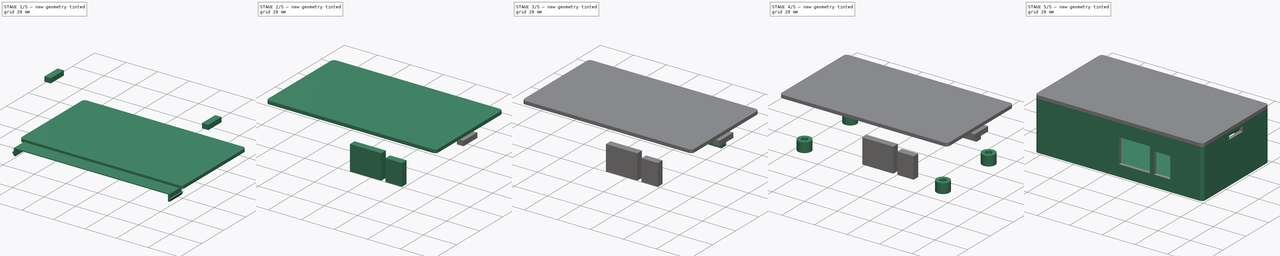
[diagram: build sequence overview — one tinted view per stage of 5, left to right]
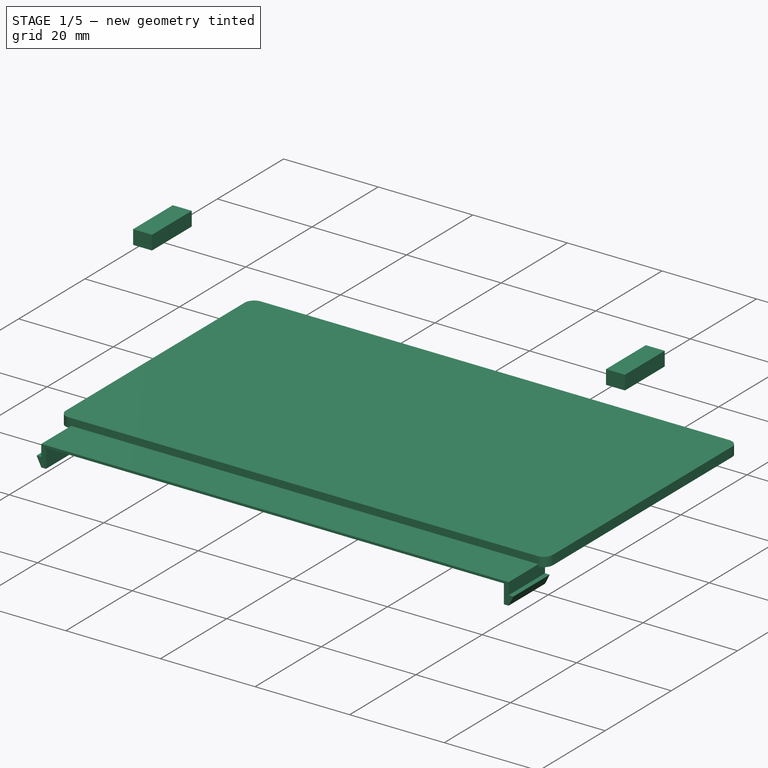
[diagram: stage 1 of 5 — iso view after this stage's code; geometry added in this stage tinted green]
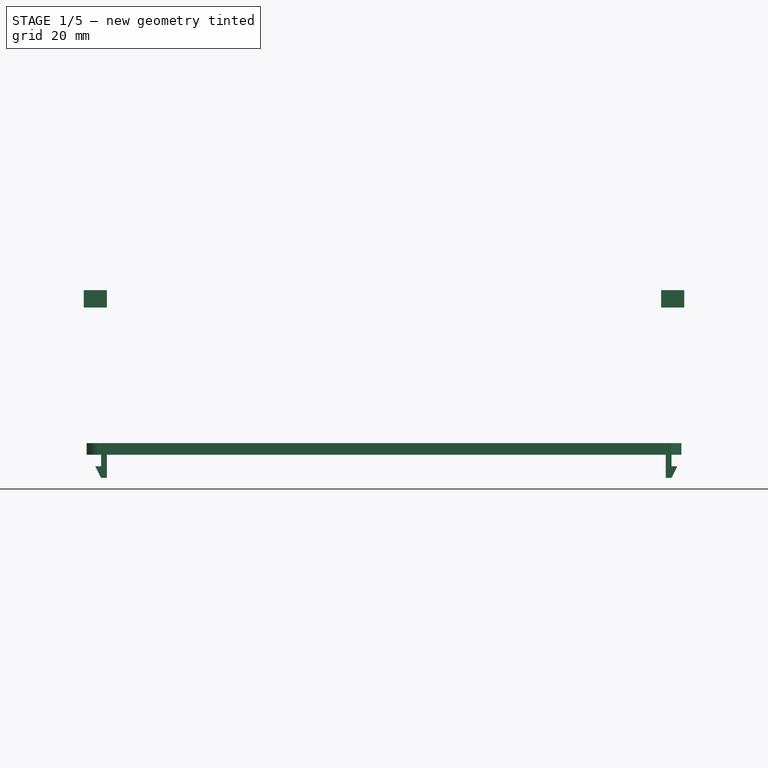
[diagram: stage 1 of 5 — front view after this stage's code; geometry added in this stage tinted green]
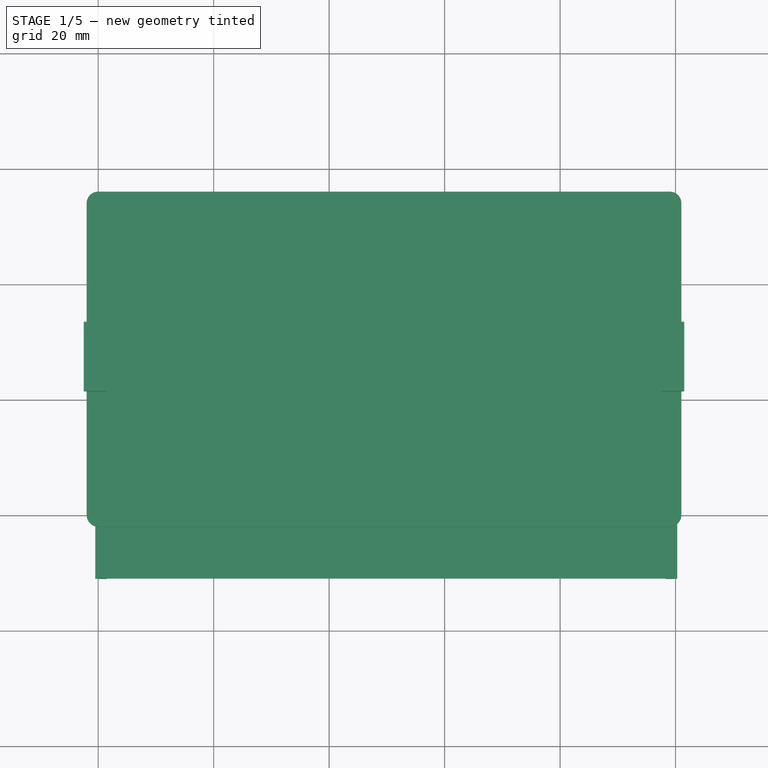
[diagram: stage 1 of 5 — top view after this stage's code; geometry added in this stage tinted green]
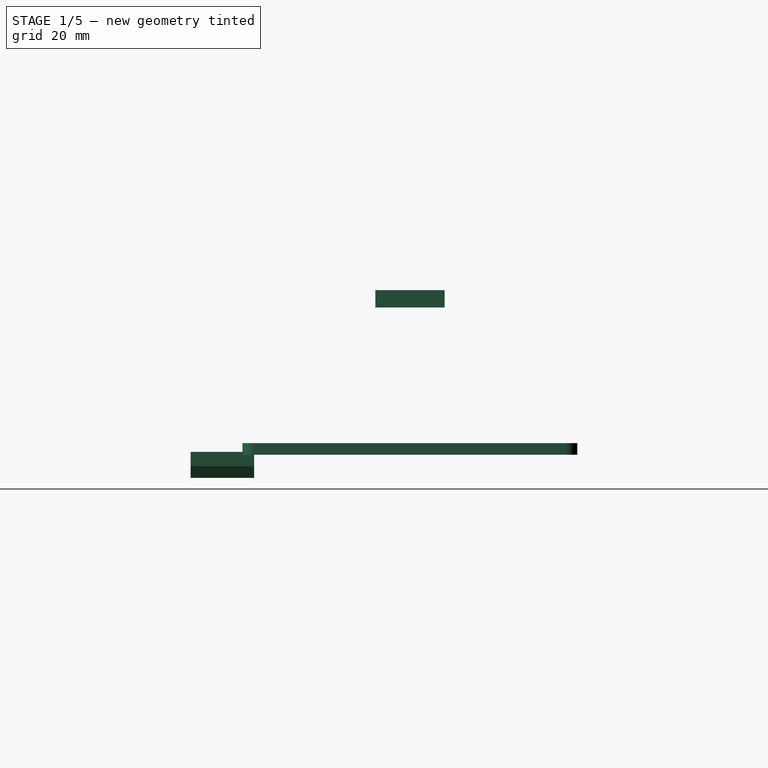
[diagram: stage 1 of 5 — right view after this stage's code; geometry added in this stage tinted green]
FCSTD DOCUMENT  (FreeCAD 0.20R29603 (Git))
Label: Case
License: All rights reserved
LicenseURL: http://en.wikipedia.org/wiki/All_rights_reserved
objects: Part::Box×9, Part::FeaturePython×4, Sketcher::SketchObject×3, PartDesign::Pad×3, PartDesign::Body×3, Part::MultiFuse×3, Part::Cut×1, Part::Feature×1
note: 30 computed .brp shape members not serialized (recipe doc carries the construction recipe); baked Part::Feature solids carry a one-line shape summary decoded from their .brp

FEATURE [Sketcher::SketchObject] Sketch001  label="LidSketch"
  FullyConstrained = true
  sketch-geometry (8):
    g0: ArcOfCircle CenterX=-9.23e-14 CenterY=54 CenterZ=0 NormalX=0 NormalY=0 NormalZ=1 AngleXU=0 Radius=2 StartAngle=1.5708 EndAngle=3.14159
    g1: LineSegment StartX=-9.22e-14 StartY=56 StartZ=0 EndX=99 EndY=56 EndZ=0
    g2: ArcOfCircle CenterX=99 CenterY=54 CenterZ=0 NormalX=0 NormalY=0 NormalZ=1 AngleXU=0 Radius=2 StartAngle=0 EndAngle=1.5708
    g3: LineSegment StartX=101 StartY=54 StartZ=0 EndX=101 EndY=0 EndZ=0
    g4: ArcOfCircle CenterX=99 CenterY=-2e-16 CenterZ=0 NormalX=0 NormalY=0 NormalZ=1 AngleXU=0 Radius=2 StartAngle=4.71239 EndAngle=6.28319
    g5: LineSegment StartX=99 StartY=-2 StartZ=0 EndX=0 EndY=-2 EndZ=0
    g6: ArcOfCircle CenterX=0 CenterY=0 CenterZ=0 NormalX=0 NormalY=0 NormalZ=1 AngleXU=0 Radius=2 StartAngle=3.14159 EndAngle=4.71239
    g7: LineSegment StartX=-2 StartY=1.672e-13 StartZ=0 EndX=-2 EndY=54 EndZ=0
  constraints (19):
    c: Radius(g0) = 2
    c: Horizontal(g1)
    c: Vertical(g3)
    c: Horizontal(g5)
    c: Vertical(g7)
    c: Tangent(g1,g0) = 1.5708
    c: Tangent(g7,g0) = 1.5708
    c: Tangent(g6,g5) = 1.5708
    c: Tangent(g7,g6) = 1.5708
    c: Tangent(g5,g4) = 1.5708
    c: Tangent(g4,g3) = 1.5708
    c: Tangent(g3,g2) = 1.5708
    c: Tangent(g2,g1) = 1.5708
    c: Distance(g7) = 54
    c: Distance(g1) = 99
    c: Radius(g6) = 2
    c: Radius(g4) = 2
    c: Radius(g2) = 2
    c: Coincident(g6,g-1)
FEATURE [PartDesign::Pad] Pad001  label="LidBasePab"
  Direction = (0,0,1)
  Length = 2
  Length2 = 10
  Profile = -> Sketch001
  ReferenceAxis = -> Sketch001 [N_Axis]
  Type = 0
FEATURE [PartDesign::Body] Body001  label="LidBase"
  Group = -> [Sketch001,Pad001]
  Origin = -> Origin001
  Tip = -> Pad001
FEATURE [Sketcher::SketchObject] Sketch002
  FullyConstrained = true
  Placement = pos=(0,0,0) rot=(1,0,0;1.5708rad)
  sketch-geometry (14):
    g0: LineSegment StartX=1.5 StartY=0 StartZ=0 EndX=1.5 EndY=-4 EndZ=0
    g1: LineSegment StartX=1.5 StartY=-4 StartZ=0 EndX=0.5 EndY=-4 EndZ=0
    g2: LineSegment StartX=0.5 StartY=-4 StartZ=0 EndX=-0.5 EndY=-2 EndZ=0
    g3: LineSegment StartX=-0.5 StartY=-2 StartZ=0 EndX=0.5 EndY=-2 EndZ=0
    g4: LineSegment StartX=0.5 StartY=-2 StartZ=0 EndX=0.5 EndY=0 EndZ=0
    g5: LineSegment StartX=98.3 StartY=0 StartZ=0 EndX=98.3 EndY=-4 EndZ=0
    g6: LineSegment StartX=98.3 StartY=-4 StartZ=0 EndX=99.3 EndY=-4 EndZ=0
    g7: LineSegment StartX=99.3 StartY=-4 StartZ=0 EndX=100.3 EndY=-2 EndZ=0
    g8: LineSegment StartX=100.3 StartY=-2 StartZ=0 EndX=99.3 EndY=-2 EndZ=0
    g9: LineSegment StartX=99.3 StartY=-2 StartZ=0 EndX=99.3 EndY=0 EndZ=0
    g10: LineSegment StartX=1.5 StartY=0 StartZ=0 EndX=98.3 EndY=0 EndZ=0
    g11: LineSegment StartX=0.5 StartY=0 StartZ=0 EndX=0.5 EndY=0.5 EndZ=0
    g12: LineSegment StartX=0.5 StartY=0.5 StartZ=0 EndX=99.3 EndY=0.5 EndZ=0
    g13: LineSegment StartX=99.3 StartY=0 StartZ=0 EndX=99.3 EndY=0.5 EndZ=0
  constraints (42):
    c: Vertical(g0)
    c: Coincident(g1,g0)
    c: Horizontal(g1)
    c: Coincident(g2,g1)
    c: Coincident(g3,g2)
    c: Coincident(g4,g3)
    c: Vertical(g4)
    c: Distance(g0) = 4
    c: Distance(g4) = 2
    c: Horizontal(g3)
    c: DistanceX(g-1,g4) = 0.5
    c: DistanceY(g4,g-1) = 0
    c: Vertical(g5)
    c: Coincident(g6,g5)
    c: Horizontal(g6)
    c: Horizontal(g8)
    c: Vertical(g9)
    c: Coincident(g8,g9)
    c: Equal(g5,g0)
    c: Equal(g9,g4)
    c: Coincident(g7,g6)
    c: Coincident(g8,g7)
    c: DistanceY(g5,g0) = 0
    c: DistanceX(g0,g5) = 96.8
    c: Coincident(g10,g5)
    c: Horizontal(g12)
    c: Coincident(g12,g11)
    c: Vertical(g11)
    c: Coincident(g13,g12)
    c: Coincident(g13,g9)
    c: Vertical(g13)
    c: DistanceY(g13,g13) = 0.5
    c: DistanceX(g1,g1) = 1
    c: DistanceY(g0,g4) = 0
    c: Coincident(g11,g4)
    c: Coincident(g0,g10)
    c: DistanceY(g5,g12) = 0.5
    c: Equal(g6,g1)
    c: DistanceX(g3,g0) = 1
    c: DistanceX(g5,g8) = 1
    c: Equal(g8,g3)
    c: Distance(g3) = 1
FEATURE [PartDesign::Pad] Pad002
  Direction = (0,-1,2e-16)
  Length = 11
  Length2 = 10
  Placement = pos=(0,0,0) rot=(1,0,0;1.5708rad)
  Profile = -> Sketch002
  ReferenceAxis = -> Sketch002 [N_Axis]
  Type = 0
FEATURE [Part::Box] Box007  label="LatchCut"
  AttacherType = Attacher::AttachEngine3D
  Height = 3
  Length = 4
  Placement = pos=(-2.5,21,25.5) rot=(0,0,1;0rad)
  Width = 12
FEATURE [Part::Box] Box008  label="LatchCut001"
  AttacherType = Attacher::AttachEngine3D
  Height = 3
  Length = 4
  Placement = pos=(97.5,21,25.5) rot=(0,0,1;0rad)
  Width = 12
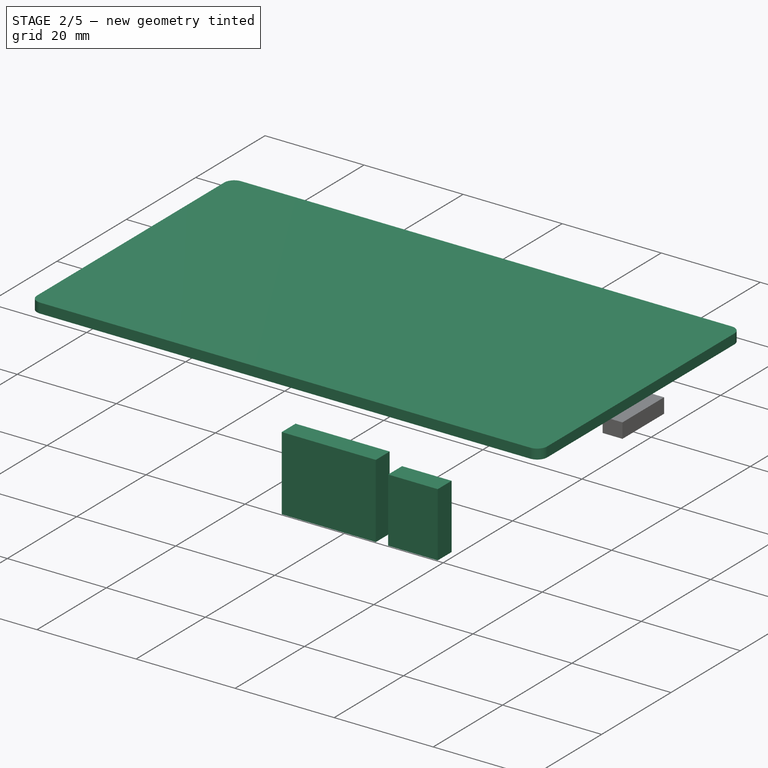
[diagram: stage 2 of 5 — iso view after this stage's code; geometry added in this stage tinted green]
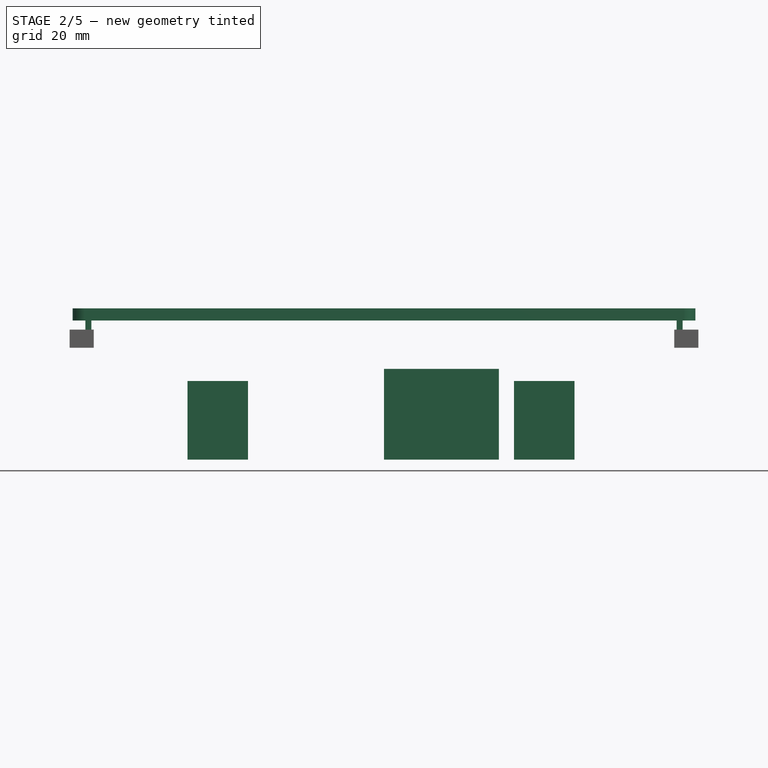
[diagram: stage 2 of 5 — front view after this stage's code; geometry added in this stage tinted green]
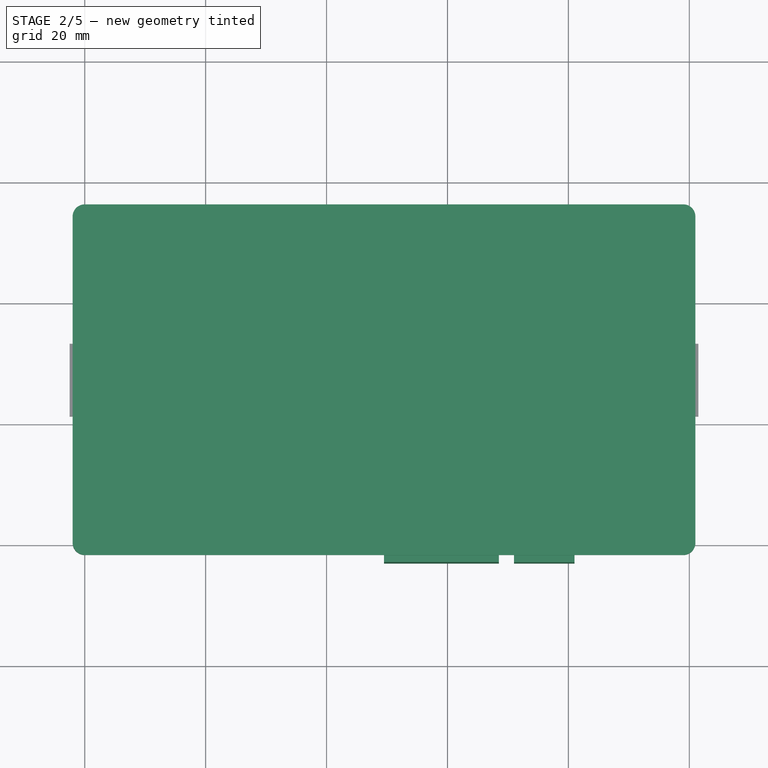
[diagram: stage 2 of 5 — top view after this stage's code; geometry added in this stage tinted green]
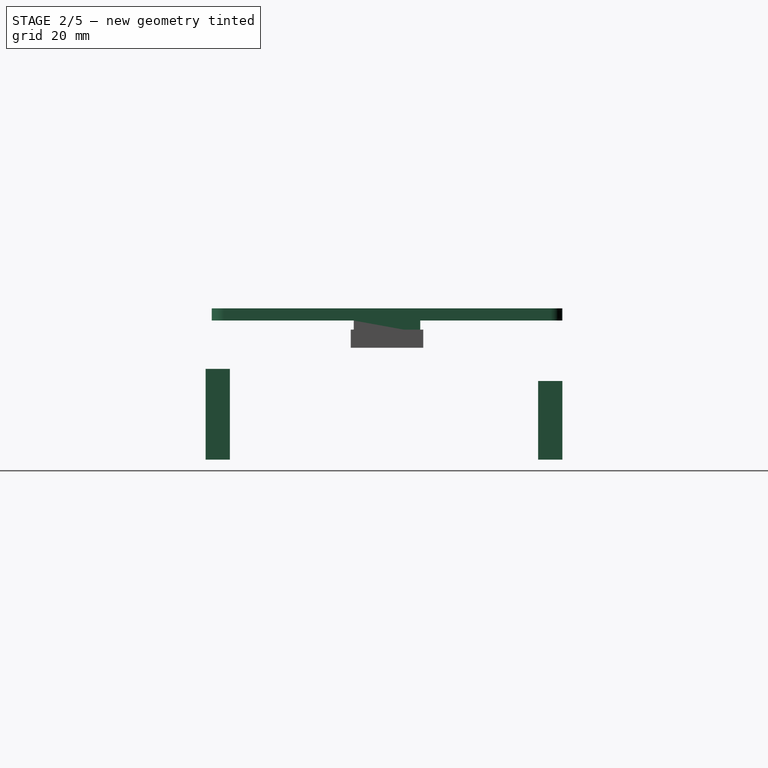
[diagram: stage 2 of 5 — right view after this stage's code; geometry added in this stage tinted green]
FEATURE [Part::Box] Box004  label="BarrelCutout003"
  AttacherType = Attacher::AttachEngine3D
  Height = 13
  Length = 10
  Placement = pos=(17,52,7) rot=(0,0,1;0rad)
  Width = 4
FEATURE [Part::Box] Box005  label="BarrelCutout004"
  AttacherType = Attacher::AttachEngine3D
  Height = 13
  Length = 10
  Placement = pos=(71,-3,7) rot=(0,0,1;0rad)
  Width = 4
FEATURE [Part::Box] Box006  label="RJ45Cutout"
  AttacherType = Attacher::AttachEngine3D
  Height = 15
  Length = 19
  Placement = pos=(49.5,-3,7) rot=(0,0,1;0rad)
  Width = 4
FEATURE [PartDesign::Body] Body002  label="Latches"
  Group = -> [Sketch002,Pad002]
  Origin = -> Origin002
  Placement = pos=(-0.4,32.5,0) rot=(0,0,1;0rad)
  Tip = -> Pad002
FEATURE [Part::MultiFuse] Fusion002  label="LidFull"
  Placement = pos=(0,0,30) rot=(0,0,1;0rad)
  Shapes = -> [Body001,Body002]
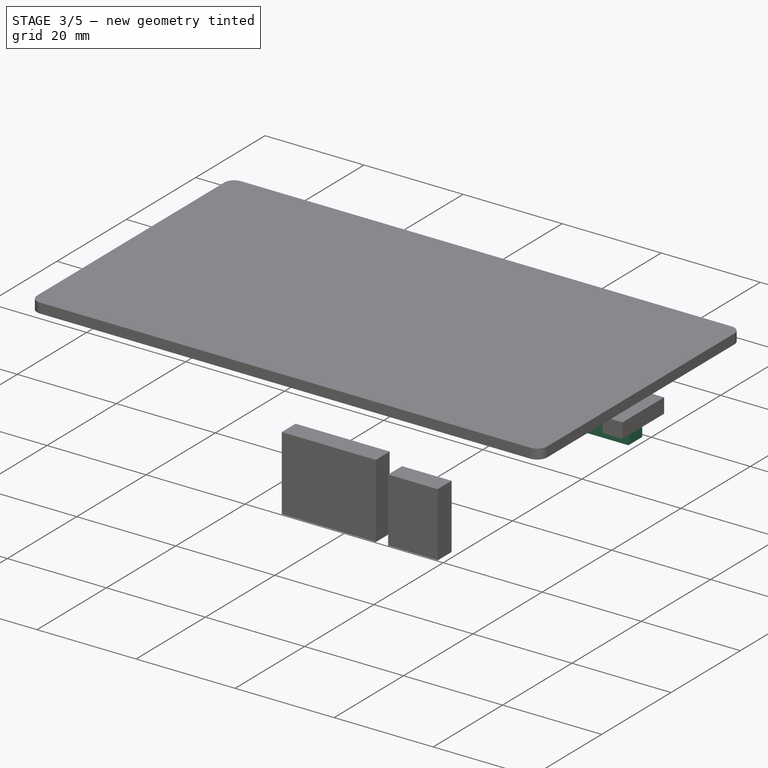
[diagram: stage 3 of 5 — iso view after this stage's code; geometry added in this stage tinted green]
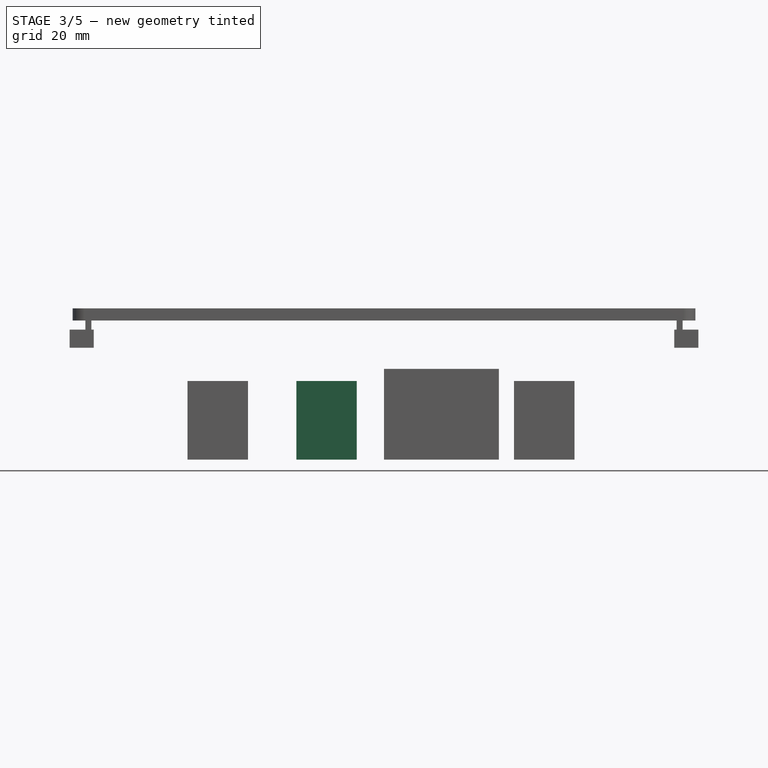
[diagram: stage 3 of 5 — front view after this stage's code; geometry added in this stage tinted green]
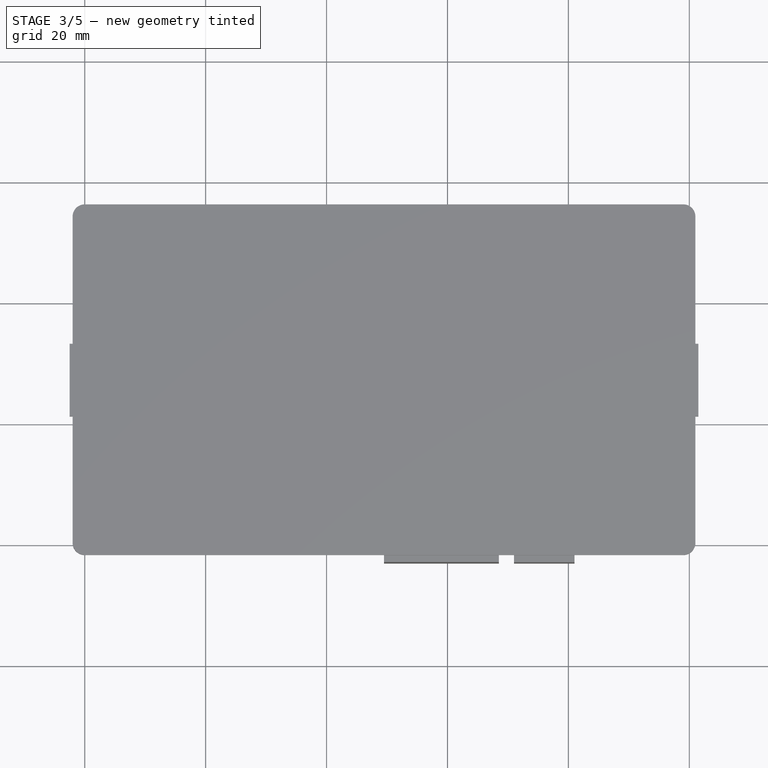
[diagram: stage 3 of 5 — top view after this stage's code; geometry added in this stage tinted green]
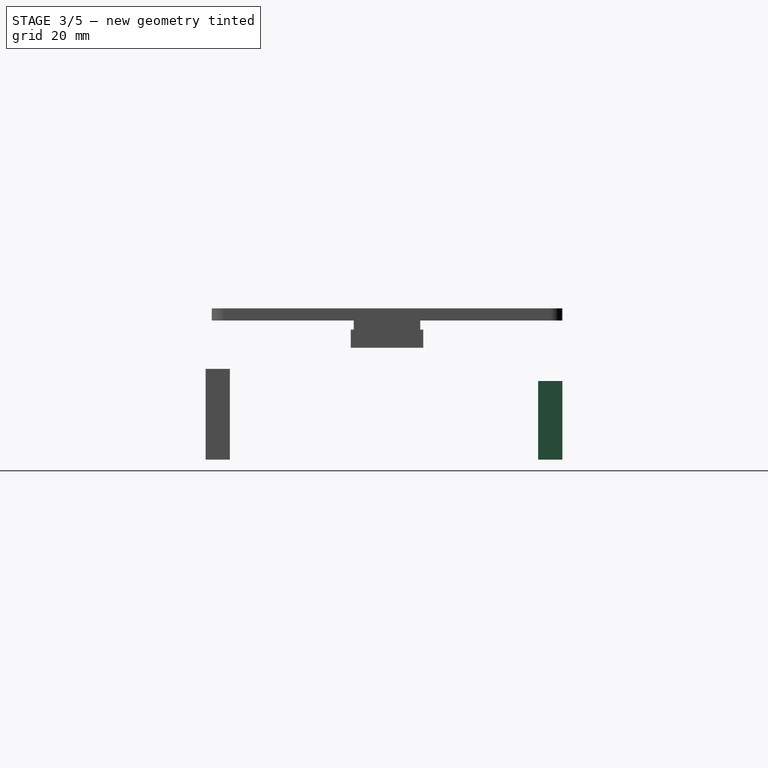
[diagram: stage 3 of 5 — right view after this stage's code; geometry added in this stage tinted green]
FEATURE [Part::Box] Box001  label="BarrelCutout"
  AttacherType = Attacher::AttachEngine3D
  Height = 13
  Length = 10
  Placement = pos=(71,52,7) rot=(0,0,1;0rad)
  Width = 4
FEATURE [Part::Box] Box002  label="BarrelCutout001"
  AttacherType = Attacher::AttachEngine3D
  Height = 13
  Length = 10
  Placement = pos=(53,52,7) rot=(0,0,1;0rad)
  Width = 4
FEATURE [Part::Box] Box003  label="BarrelCutout002"
  AttacherType = Attacher::AttachEngine3D
  Height = 13
  Length = 10
  Placement = pos=(35,52,7) rot=(0,0,1;0rad)
  Width = 4
FEATURE [Part::MultiFuse] Fusion001  label="Cuts"
  Shapes = -> [Box001,Box002,Box003,Box004,Box005,Box006,Box007,Box008]
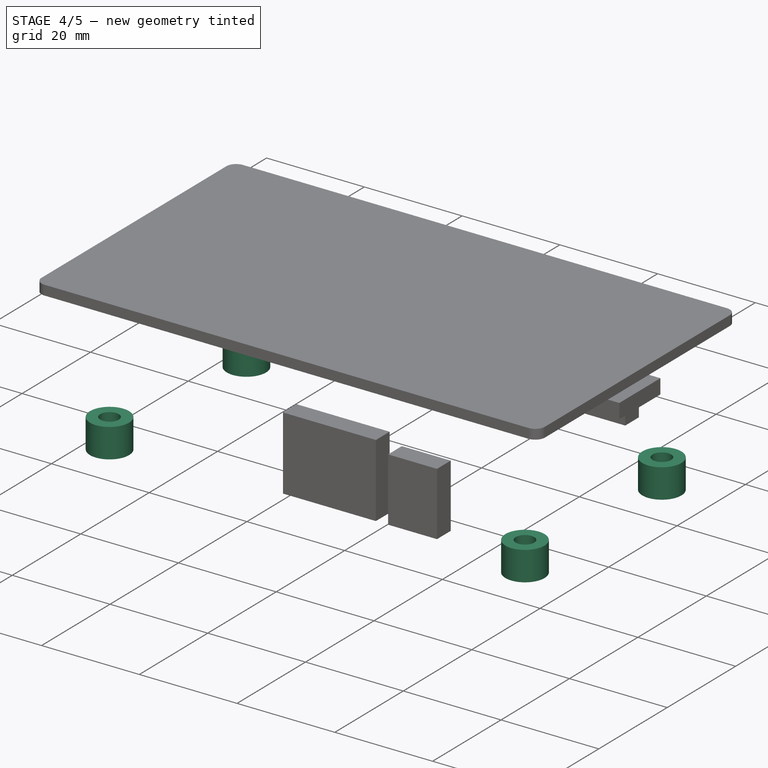
[diagram: stage 4 of 5 — iso view after this stage's code; geometry added in this stage tinted green]
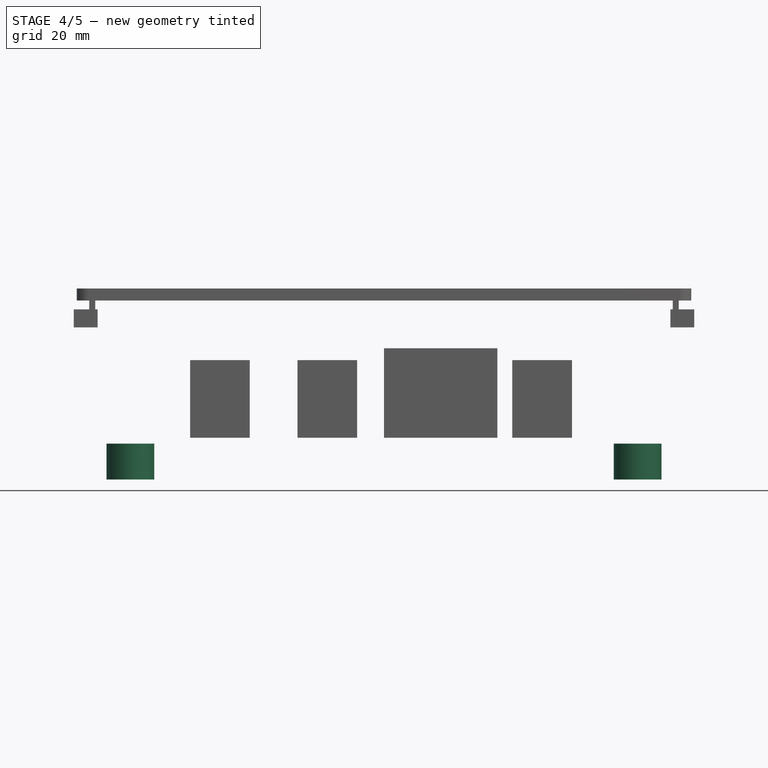
[diagram: stage 4 of 5 — front view after this stage's code; geometry added in this stage tinted green]
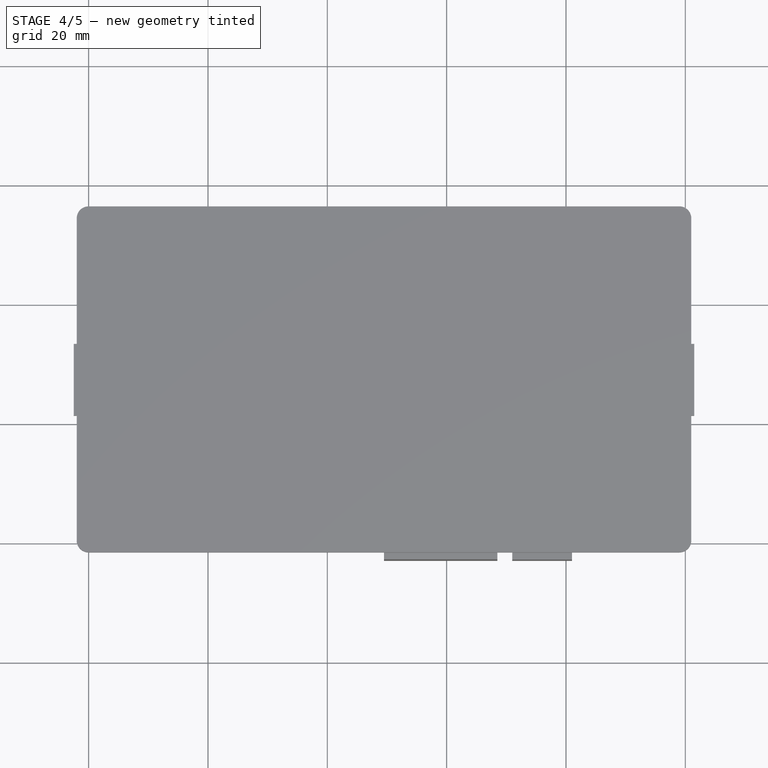
[diagram: stage 4 of 5 — top view after this stage's code; geometry added in this stage tinted green]
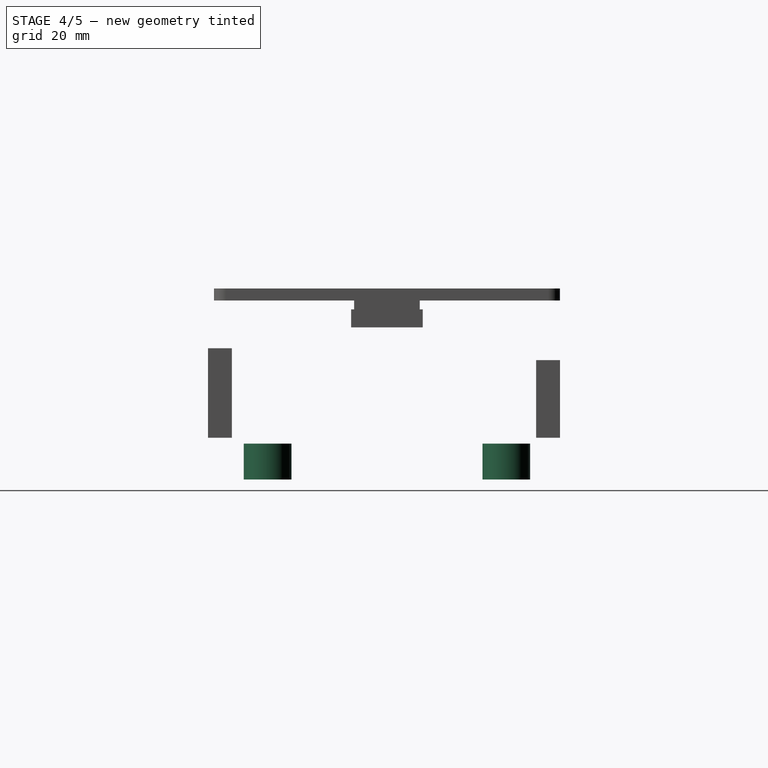
[diagram: stage 4 of 5 — right view after this stage's code; geometry added in this stage tinted green]
FEATURE [Part::FeaturePython] Tube  label="Standoff"  # WARN: FeaturePython — macro-defined, semantics opaque (R4)
  AttacherType = Attacher::AttachEngine3D
  Height = 6
  InnerRadius = 1.9
  OuterRadius = 4
  Placement = pos=(7,7,0) rot=(0,0,1;0rad)
FEATURE [Part::FeaturePython] Tube001  label="Standoff001"  # WARN: FeaturePython — macro-defined, semantics opaque (R4)
  AttacherType = Attacher::AttachEngine3D
  Height = 6
  InnerRadius = 1.9
  OuterRadius = 4
  Placement = pos=(92,7,0) rot=(0,0,1;0rad)
FEATURE [Part::FeaturePython] Tube002  label="Standoff002"  # WARN: FeaturePython — macro-defined, semantics opaque (R4)
  AttacherType = Attacher::AttachEngine3D
  Height = 6
  InnerRadius = 1.9
  OuterRadius = 4
  Placement = pos=(7,47,0) rot=(0,0,1;0rad)
FEATURE [Part::FeaturePython] Tube003  label="Standoff003"  # WARN: FeaturePython — macro-defined, semantics opaque (R4)
  AttacherType = Attacher::AttachEngine3D
  Height = 6
  InnerRadius = 1.9
  OuterRadius = 4
  Placement = pos=(92,47,0) rot=(0,0,1;0rad)
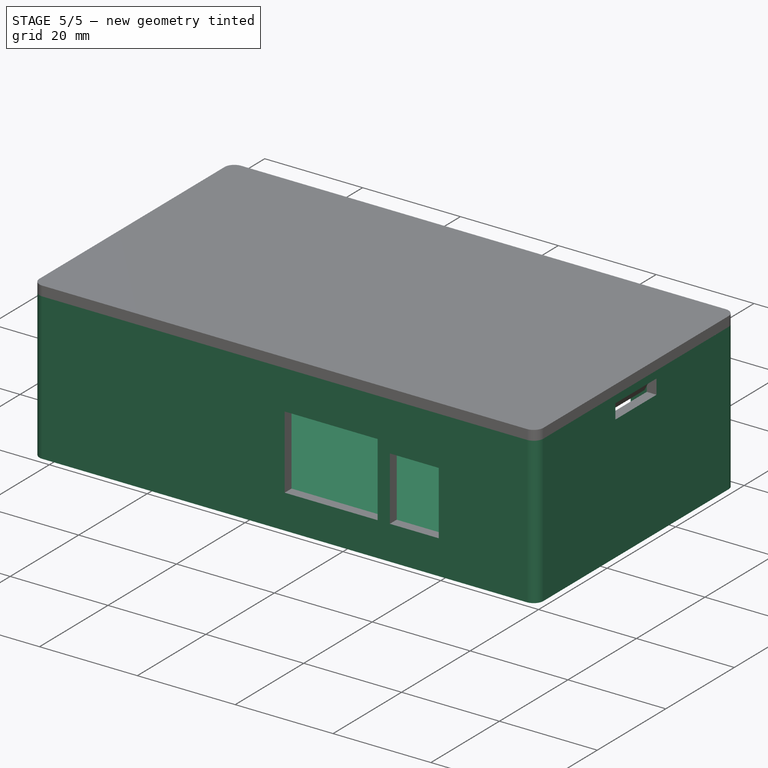
[diagram: stage 5 of 5 — iso view after this stage's code; geometry added in this stage tinted green]
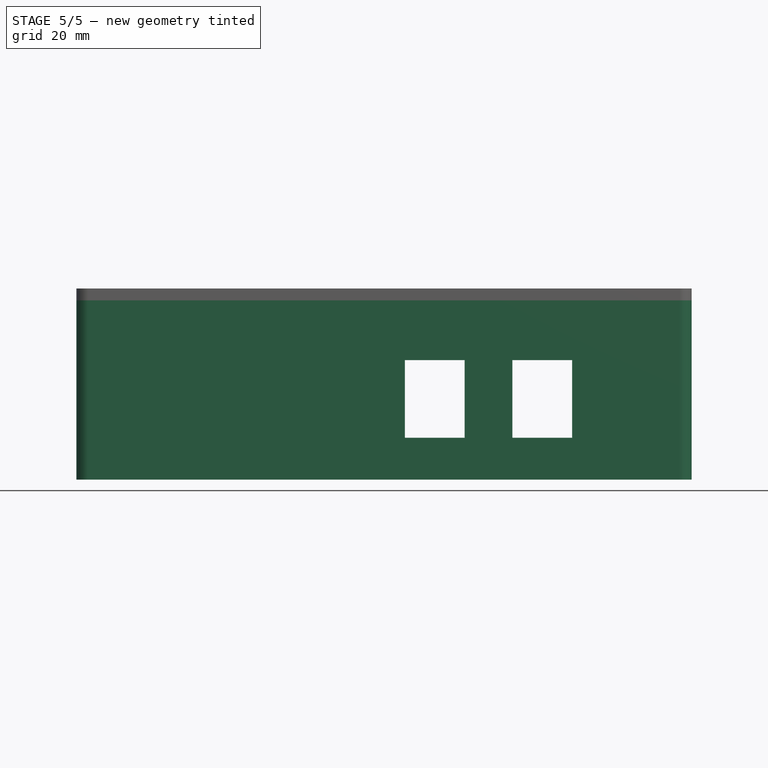
[diagram: stage 5 of 5 — front view after this stage's code; geometry added in this stage tinted green]
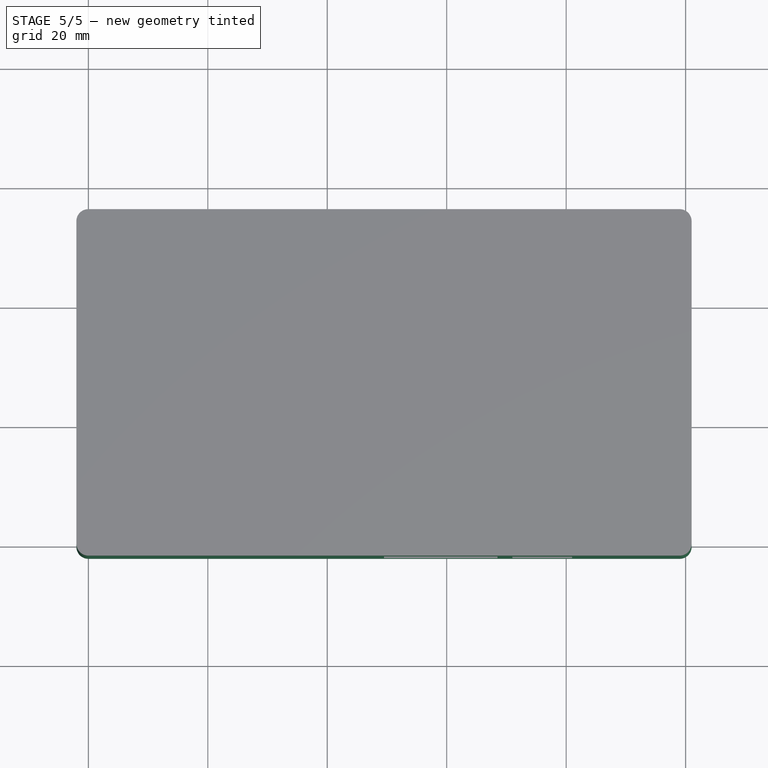
[diagram: stage 5 of 5 — top view after this stage's code; geometry added in this stage tinted green]
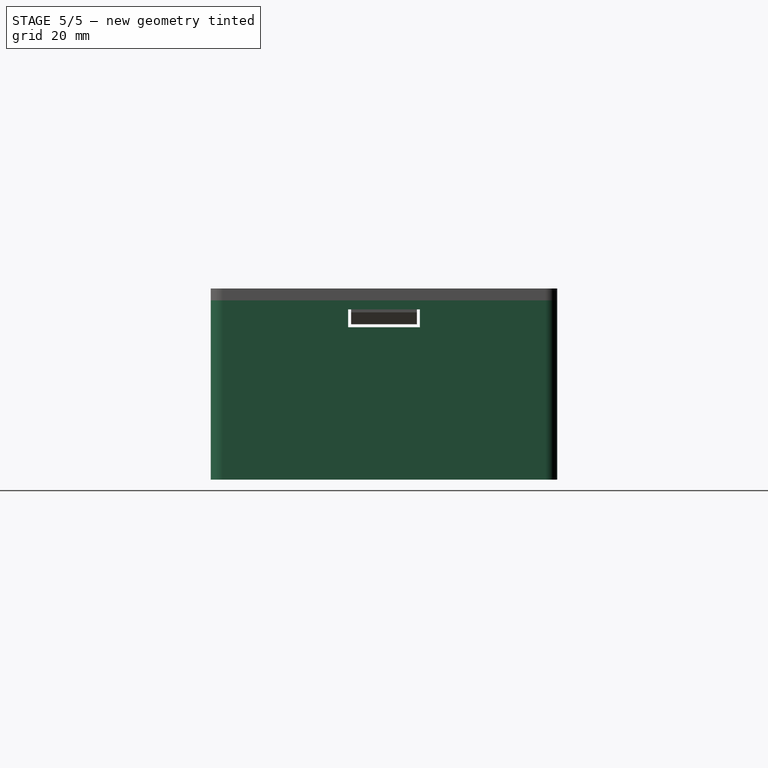
[diagram: stage 5 of 5 — right view after this stage's code; geometry added in this stage tinted green]
FEATURE [Sketcher::SketchObject] Sketch
  FullyConstrained = true
  sketch-geometry (12):
    g0: LineSegment StartX=0 StartY=54 StartZ=0 EndX=99 EndY=54 EndZ=0
    g1: LineSegment StartX=99 StartY=54 StartZ=0 EndX=99 EndY=0 EndZ=0
    g2: LineSegment StartX=99 StartY=0 StartZ=0 EndX=0 EndY=0 EndZ=0
    g3: LineSegment StartX=0 StartY=0 StartZ=0 EndX=0 EndY=54 EndZ=0
    g4: ArcOfCircle CenterX=0 CenterY=54 CenterZ=0 NormalX=0 NormalY=0 NormalZ=1 AngleXU=0 Radius=2 StartAngle=1.5708 EndAngle=3.14159
    g5: LineSegment StartX=1e-16 StartY=56 StartZ=0 EndX=99 EndY=56 EndZ=0
    g6: ArcOfCircle CenterX=99 CenterY=54 CenterZ=0 NormalX=0 NormalY=0 NormalZ=1 AngleXU=0 Radius=2 StartAngle=2e-16 EndAngle=1.57081
    g7: LineSegment StartX=101 StartY=54 StartZ=0 EndX=101 EndY=0 EndZ=0
    g8: ArcOfCircle CenterX=99 CenterY=0 CenterZ=0 NormalX=0 NormalY=0 NormalZ=1 AngleXU=0 Radius=2 StartAngle=4.71239 EndAngle=6.28319
    g9: LineSegment StartX=99 StartY=-2 StartZ=0 EndX=0 EndY=-2 EndZ=0
    g10: ArcOfCircle CenterX=0 CenterY=0 CenterZ=0 NormalX=0 NormalY=0 NormalZ=1 AngleXU=0 Radius=2 StartAngle=3.14159 EndAngle=4.71239
    g11: LineSegment StartX=-2 StartY=2e-16 StartZ=0 EndX=-2 EndY=54 EndZ=0
  constraints (28):
    c: Coincident(g0,g1)
    c: Coincident(g1,g2)
    c: Coincident(g2,g3)
    c: Coincident(g3,g0)
    c: Horizontal(g0)
    c: Horizontal(g2)
    c: Vertical(g1)
    c: Vertical(g3)
    c: Distance(g0) = 99
    c: Distance(g1) = 54
    c: Coincident(g2,g-1)
    c: Coincident(g4,g0)
    c: Radius(g4) = 2
    c: Horizontal(g5)
    c: Coincident(g6,g0)
    c: Coincident(g6,g5)
    c: Vertical(g7)
    c: Coincident(g8,g1)
    c: Horizontal(g9)
    c: Coincident(g10,g2)
    c: Vertical(g11)
    c: Tangent(g5,g4) = 1.5708
    c: Tangent(g11,g4) = 1.5708
    c: Tangent(g10,g9) = 1.5708
    c: Tangent(g11,g10) = 1.5708
    c: Tangent(g9,g8) = 1.5708
    c: Tangent(g8,g7) = 1.5708
    c: Tangent(g7,g6) = 1.5708
FEATURE [PartDesign::Pad] Pad
  Direction = (0,0,1)
  Length = 30
  Length2 = 10
  Profile = -> Sketch
  ReferenceAxis = -> Sketch [N_Axis]
  Type = 0
FEATURE [PartDesign::Body] Body  label="Walls"
  Group = -> [Sketch,Pad]
  Origin = -> Origin
  Tip = -> Pad
FEATURE [Part::Box] Box  label="Base"
  AttacherType = Attacher::AttachEngine3D
  Height = 2
  Length = 100
  Placement = pos=(-0.5,-0.5,0) rot=(0,0,1;0rad)
  Width = 55
FEATURE [Part::MultiFuse] Fusion  label="BaseCase"
  Shapes = -> [Body,Box,Tube,Tube001,Tube002,Tube003]
FEATURE [Part::Cut] Cut  label="CaseFull"
  Base = -> Fusion
  Tool = -> Fusion001
FEATURE [Part::Feature] Feature001  label="SG12_Scoring_Extension_Breakout"
  Placement = pos=(-114,133,6) rot=(0,0,1;0rad)
  shape: bbox 95 x 58.55 x 28.53 mm, 1655 faces, 29 solids (baked)
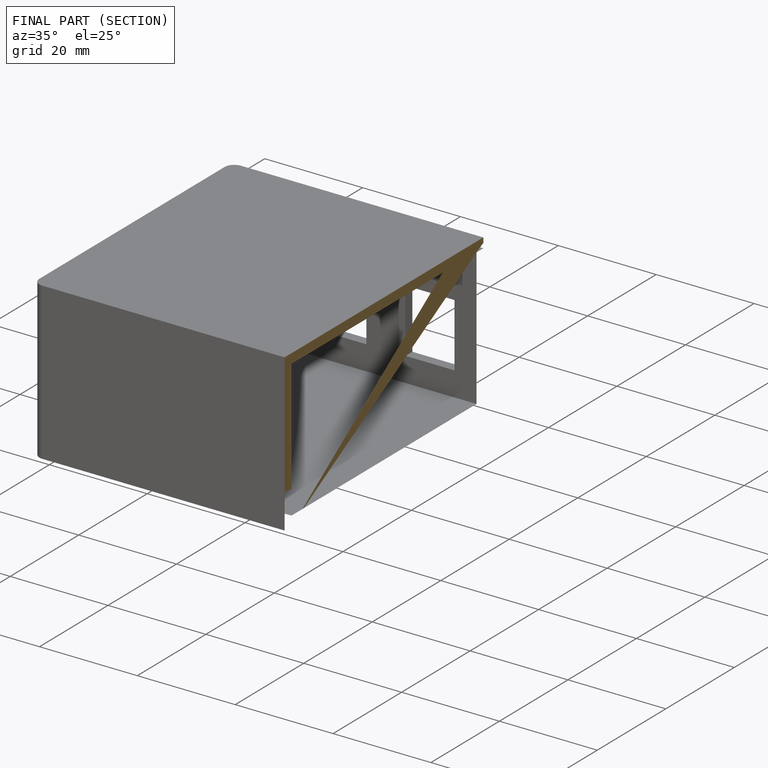
[diagram: finished part — half-section view (interior)]
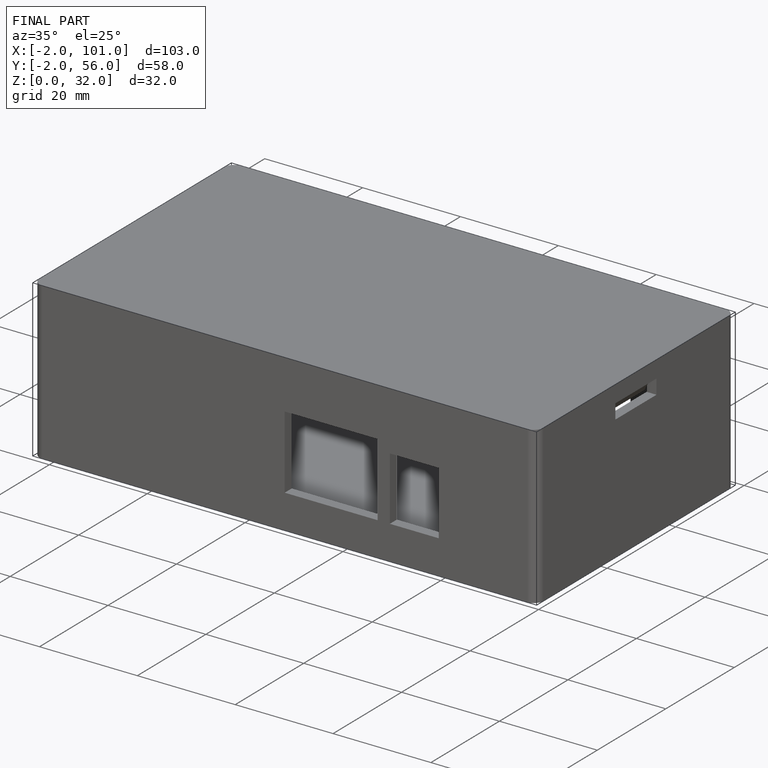
[diagram: finished part — iso view with bounding-box wireframe]
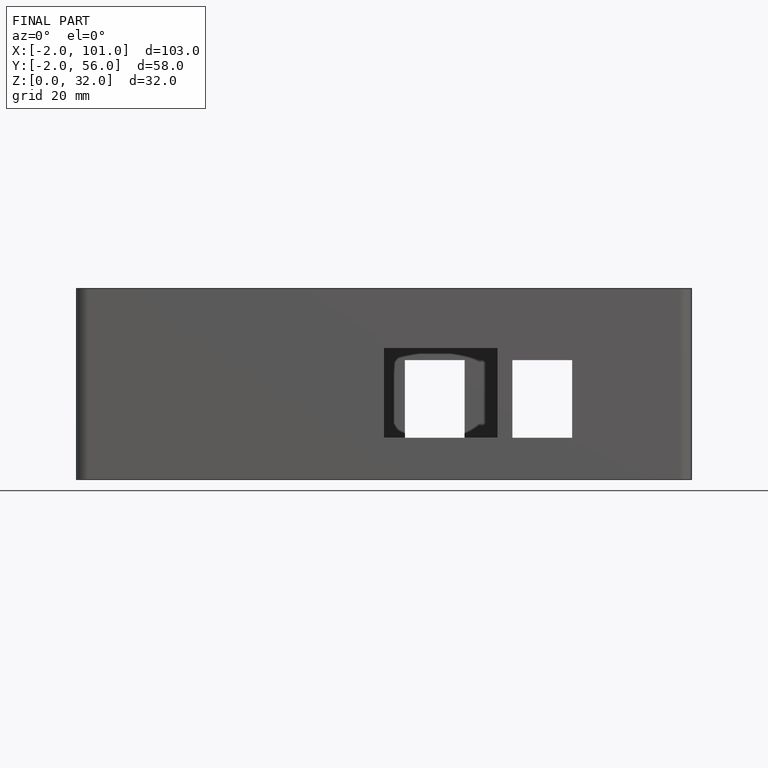
[diagram: finished part — front view with bounding-box wireframe]
